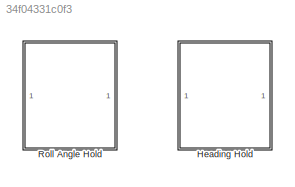
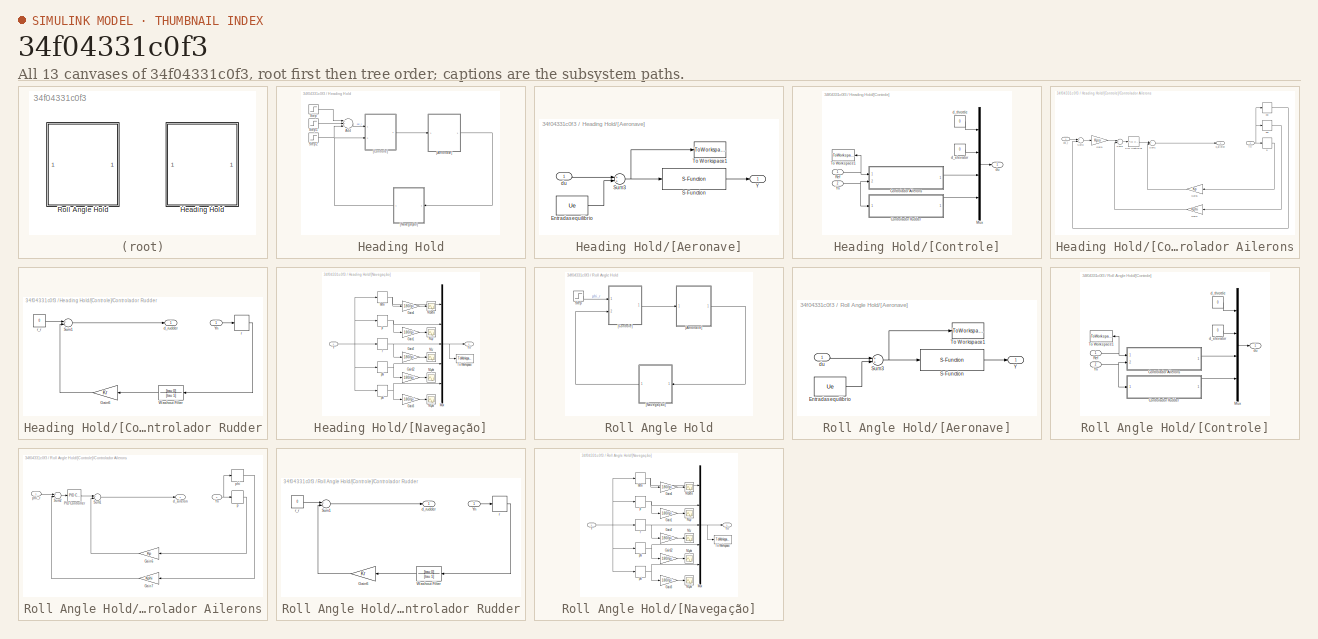
[diagram: thumbnail index - all 13 canvases of the model, root first then tree order]
MODEL slx_34f04331c0f3
KIND model
CONFIG AbsTol = auto
CONFIG FixedStep = 0.01
CONFIG MaxStep = auto
CONFIG MinStep = auto
CONFIG RelTol = 1e-3
CONFIG SampleTimeConstraint = Unconstrained
CONFIG Solver = ode4
CONFIG SolverMode = Auto
CONFIG SolverName = ode4
CONFIG StartTime = 0.0
CONFIG StopTime = 300
BLOCK [SubSystem] Heading Hold
  Ports = []
  RequestExecContextInheritance = off
  Variant = off
BLOCK [Sum] Heading Hold/Add
  InputSameDT = off
  Inputs = +++
  OutDataTypeStr = Inherit: Inherit via internal rule
  Ports = [3, 1]
  SaturateOnIntegerOverflow = off
BLOCK [Step] Heading Hold/Step
  After = degtorad(45)
  SampleTime = 0
  Time = 50
BLOCK [Step] Heading Hold/Step1
  After = degtorad(-90)
  SampleTime = 0
  Time = 150
BLOCK [Step] Heading Hold/Step2
  After = degtorad(45)
  SampleTime = 0
  Time = 250
BLOCK [SubSystem] Heading Hold/[Aeronave]
  Ports = [1, 1]
  RequestExecContextInheritance = off
  Variant = off
BLOCK [Constant] Heading Hold/[Aeronave]/Entradas equilibrio
  Value = Ue
BLOCK [S-Function] Heading Hold/[Aeronave]/S-Function
  EnableBusSupport = off
  FunctionName = sfunction_piper
  Parameters = par_gen,par_aero,par_prop, Xe
  Ports = [1, 1]
  SFunctionDeploymentMode = off
BLOCK [Sum] Heading Hold/[Aeronave]/Sum3
  InputSameDT = off
  OutDataTypeStr = Inherit: Inherit via internal rule
  Ports = [2, 1]
  SaturateOnIntegerOverflow = off
BLOCK [ToWorkspace] Heading Hold/[Aeronave]/To Workspace1
  MaxDataPoints = inf
  Ports = [1]
  SampleTime = -1
  SaveFormat = Timeseries
  VariableName = NLU
BLOCK [Outport] Heading Hold/[Aeronave]/Y
  IconDisplay = Port number
BLOCK [Inport] Heading Hold/[Aeronave]/du
  IconDisplay = Port number
BLOCK [SubSystem] Heading Hold/[Controle]
  Ports = [2, 1]
  RequestExecContextInheritance = off
  Variant = off
BLOCK [SubSystem] Heading Hold/[Controle]/Controlador Ailerons
  Ports = [2, 1]
  RequestExecContextInheritance = off
  Variant = off
BLOCK [Gain] Heading Hold/[Controle]/Controlador Ailerons/Gain1
  Gain = Kpsi
  OutDataTypeStr = Inherit: Inherit via internal rule
  ParamDataTypeStr = Inherit: Inherit via internal rule
  SaturateOnIntegerOverflow = off
BLOCK [Gain] Heading Hold/[Controle]/Controlador Ailerons/Gain6
  Gain = Kp
  OutDataTypeStr = Inherit: Inherit via internal rule
  ParamDataTypeStr = Inherit: Inherit via internal rule
  SaturateOnIntegerOverflow = off
BLOCK [Gain] Heading Hold/[Controle]/Controlador Ailerons/Gain7
  Gain = Kphi
  OutDataTypeStr = Inherit: Inherit via internal rule
  ParamDataTypeStr = Inherit: Inherit via internal rule
  SaturateOnIntegerOverflow = off
BLOCK [Reference] Heading Hold/[Controle]/Controlador Ailerons/PID Controller  REF=simulink/Continuous/PID Controller
  Ports = [1, 1]
  SourceBlock = simulink/Continuous/PID Controller
  SourceType = PID 1dof
BLOCK [Sum] Heading Hold/[Controle]/Controlador Ailerons/Sum1
  InputSameDT = off
  Inputs = +-
  OutDataTypeStr = Inherit: Inherit via internal rule
  Ports = [2, 1]
  SaturateOnIntegerOverflow = off
BLOCK [Sum] Heading Hold/[Controle]/Controlador Ailerons/Sum2
  InputSameDT = off
  Inputs = +-
  OutDataTypeStr = Inherit: Inherit via internal rule
  Ports = [2, 1]
  SaturateOnIntegerOverflow = off
BLOCK [Sum] Heading Hold/[Controle]/Controlador Ailerons/Sum3
  InputSameDT = off
  Inputs = +-
  OutDataTypeStr = Inherit: Inherit via internal rule
  Ports = [2, 1]
  SaturateOnIntegerOverflow = off
BLOCK [Inport] Heading Hold/[Controle]/Controlador Ailerons/Yn
  IconDisplay = Port number
  Port = 2
BLOCK [Outport] Heading Hold/[Controle]/Controlador Ailerons/d_aileron
  IconDisplay = Port number
BLOCK [Selector] Heading Hold/[Controle]/Controlador Ailerons/p
  IndexOptions = Index vector (dialog)
  Indices = [2]
  InputPortWidth = 5
  OutputSizes = 1
  Ports = [1, 1]
BLOCK [Selector] Heading Hold/[Controle]/Controlador Ailerons/phi
  IndexOptions = Index vector (dialog)
  Indices = [4]
  InputPortWidth = 5
  OutputSizes = 1
  Ports = [1, 1]
BLOCK [Selector] Heading Hold/[Controle]/Controlador Ailerons/psi
  IndexOptions = Index vector (dialog)
  Indices = [5]
  InputPortWidth = 5
  OutputSizes = 1
  Ports = [1, 1]
BLOCK [Inport] Heading Hold/[Controle]/Controlador Ailerons/psi_r
  IconDisplay = Port number
BLOCK [SubSystem] Heading Hold/[Controle]/Controlador Rudder
  Ports = [1, 1]
  RequestExecContextInheritance = off
  Variant = off
BLOCK [Gain] Heading Hold/[Controle]/Controlador Rudder/Gain6
  Gain = Kr
  OutDataTypeStr = Inherit: Inherit via internal rule
  ParamDataTypeStr = Inherit: Inherit via internal rule
  SaturateOnIntegerOverflow = off
BLOCK [Sum] Heading Hold/[Controle]/Controlador Rudder/Sum1
  InputSameDT = off
  Inputs = +-
  OutDataTypeStr = Inherit: Inherit via internal rule
  Ports = [2, 1]
  SaturateOnIntegerOverflow = off
BLOCK [TransferFcn] Heading Hold/[Controle]/Controlador Rudder/Washout Filter
  Denominator = [tau 1]
  Numerator = [tau 0]
BLOCK [Inport] Heading Hold/[Controle]/Controlador Rudder/Yn
  IconDisplay = Port number
BLOCK [Outport] Heading Hold/[Controle]/Controlador Rudder/d_rudder
  IconDisplay = Port number
BLOCK [Selector] Heading Hold/[Controle]/Controlador Rudder/r
  IndexOptions = Index vector (dialog)
  Indices = [3]
  InputPortWidth = 5
  OutputSizes = 1
  Ports = [1, 1]
BLOCK [Constant] Heading Hold/[Controle]/Controlador Rudder/r_r
  Value = 0
BLOCK [Mux] Heading Hold/[Controle]/Mux
  DisplayOption = bar
  Ports = [4, 1]
BLOCK [Inport] Heading Hold/[Controle]/Ref
  IconDisplay = Port number
BLOCK [ToWorkspace] Heading Hold/[Controle]/To Workspace1
  MaxDataPoints = inf
  Ports = [1]
  SampleTime = -1
  SaveFormat = Timeseries
  VariableName = NLstep
BLOCK [Inport] Heading Hold/[Controle]/Yn
  IconDisplay = Port number
  Port = 2
BLOCK [Constant] Heading Hold/[Controle]/d_elevator
  Value = 0
BLOCK [Constant] Heading Hold/[Controle]/d_throttle
  Value = 0
BLOCK [Outport] Heading Hold/[Controle]/du
  IconDisplay = Port number
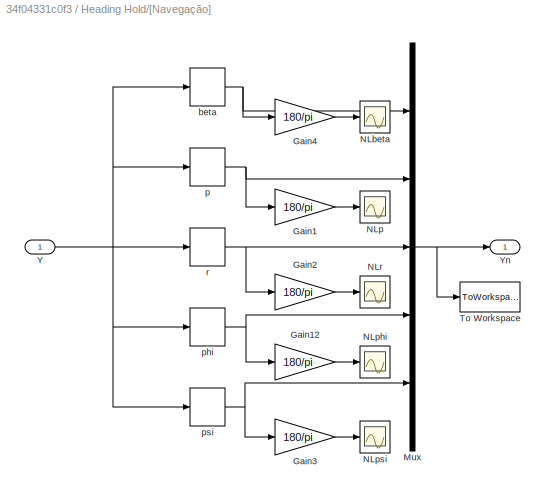
BLOCK [SubSystem] Heading Hold/[Navegação]
  Ports = [1, 1]
  RequestExecContextInheritance = off
  Variant = off
BLOCK [Gain] Heading Hold/[Navegação]/Gain1
  Gain = 180/pi
  OutDataTypeStr = Inherit: Inherit via internal rule
  ParamDataTypeStr = Inherit: Inherit via internal rule
  SaturateOnIntegerOverflow = off
BLOCK [Gain] Heading Hold/[Navegação]/Gain12
  Gain = 180/pi
  OutDataTypeStr = Inherit: Inherit via internal rule
  ParamDataTypeStr = Inherit: Inherit via internal rule
  SaturateOnIntegerOverflow = off
BLOCK [Gain] Heading Hold/[Navegação]/Gain2
  Gain = 180/pi
  OutDataTypeStr = Inherit: Inherit via internal rule
  ParamDataTypeStr = Inherit: Inherit via internal rule
  SaturateOnIntegerOverflow = off
BLOCK [Gain] Heading Hold/[Navegação]/Gain3
  Gain = 180/pi
  OutDataTypeStr = Inherit: Inherit via internal rule
  ParamDataTypeStr = Inherit: Inherit via internal rule
  SaturateOnIntegerOverflow = off
BLOCK [Gain] Heading Hold/[Navegação]/Gain4
  Gain = 180/pi
  OutDataTypeStr = Inherit: Inherit via internal rule
  ParamDataTypeStr = Inherit: Inherit via internal rule
  SaturateOnIntegerOverflow = off
BLOCK [Mux] Heading Hold/[Navegação]/Mux
  DisplayOption = bar
  Inputs = 5
  Ports = [5, 1]
BLOCK [Scope] Heading Hold/[Navegação]/NLbeta
  Ports = [1]
  ScopeSpecificationString = Simulink.scopes.TimeScopeBlockCfg('CurrentConfiguration', extmgr.ConfigurationSet(extmgr.Configuration('Core','General UI',true),extmgr.Configuration('Core','Source UI',true),extmgr.Configuration('Sources','WiredSimulink',true,'DataLoggingVariableName','ScopeData3','DataLoggingSaveFormat','StructureWithTime','DataLoggingLimitDataPoints',true,'DataLoggingDecimation','1','DataLoggingDecimateData',tr...<+1720ch>
BLOCK [Scope] Heading Hold/[Navegação]/NLp
  Ports = [1]
  ScopeSpecificationString = Simulink.scopes.TimeScopeBlockCfg('CurrentConfiguration', extmgr.ConfigurationSet(extmgr.Configuration('Core','General UI',true),extmgr.Configuration('Core','Source UI',true),extmgr.Configuration('Sources','WiredSimulink',true,'DataLoggingVariableName','ScopeData8','DataLoggingSaveFormat','StructureWithTime','DataLoggingLimitDataPoints',true,'DataLoggingDecimation','1','DataLoggingDecimateData',tr...<+1726ch>
BLOCK [Scope] Heading Hold/[Navegação]/NLphi
  Ports = [1]
  ScopeSpecificationString = Simulink.scopes.TimeScopeBlockCfg('CurrentConfiguration', extmgr.ConfigurationSet(extmgr.Configuration('Core','General UI',true),extmgr.Configuration('Core','Source UI',true),extmgr.Configuration('Sources','WiredSimulink',true,'DataLoggingVariableName','ScopeData7','DataLoggingSaveFormat','StructureWithTime','DataLoggingLimitDataPoints',true,'DataLoggingDecimation','1','DataLoggingDecimateData',tr...<+1754ch>
BLOCK [Scope] Heading Hold/[Navegação]/NLpsi
  Ports = [1]
  ScopeSpecificationString = Simulink.scopes.TimeScopeBlockCfg('CurrentConfiguration', extmgr.ConfigurationSet(extmgr.Configuration('Core','General UI',true),extmgr.Configuration('Core','Source UI',true),extmgr.Configuration('Sources','WiredSimulink',true,'DataLoggingVariableName','ScopeData5','DataLoggingSaveFormat','StructureWithTime','DataLoggingLimitDataPoints',true,'DataLoggingDecimation','1','DataLoggingDecimateData',tr...<+1726ch>
BLOCK [Scope] Heading Hold/[Navegação]/NLr
  Ports = [1]
  ScopeSpecificationString = Simulink.scopes.TimeScopeBlockCfg('CurrentConfiguration', extmgr.ConfigurationSet(extmgr.Configuration('Core','General UI',true),extmgr.Configuration('Core','Source UI',true),extmgr.Configuration('Sources','WiredSimulink',true,'DataLoggingVariableName','ScopeData9','DataLoggingSaveFormat','StructureWithTime','DataLoggingLimitDataPoints',true,'DataLoggingDecimation','1','DataLoggingDecimateData',tr...<+1724ch>
BLOCK [ToWorkspace] Heading Hold/[Navegação]/To Workspace
  MaxDataPoints = inf
  Ports = [1]
  SampleTime = -1
  SaveFormat = Timeseries
  VariableName = NLY
BLOCK [Inport] Heading Hold/[Navegação]/Y
  IconDisplay = Port number
BLOCK [Outport] Heading Hold/[Navegação]/Yn
  IconDisplay = Port number
BLOCK [Selector] Heading Hold/[Navegação]/beta
  IndexOptions = Index vector (dialog)
  Indices = [3]
  InputPortWidth = 12
  OutputSizes = 1
  Ports = [1, 1]
BLOCK [Selector] Heading Hold/[Navegação]/p
  IndexOptions = Index vector (dialog)
  Indices = [4]
  InputPortWidth = 12
  OutputSizes = 1
  Ports = [1, 1]
BLOCK [Selector] Heading Hold/[Navegação]/phi
  IndexOptions = Index vector (dialog)
  Indices = [7]
  InputPortWidth = 12
  OutputSizes = 1
  Ports = [1, 1]
BLOCK [Selector] Heading Hold/[Navegação]/psi
  IndexOptions = Index vector (dialog)
  Indices = [9]
  InputPortWidth = 12
  OutputSizes = 1
  Ports = [1, 1]
BLOCK [Selector] Heading Hold/[Navegação]/r
  IndexOptions = Index vector (dialog)
  Indices = [6]
  InputPortWidth = 12
  OutputSizes = 1
  Ports = [1, 1]
BLOCK [SubSystem] Roll Angle Hold
  Commented = on
  Ports = []
  RequestExecContextInheritance = off
  Variant = off
BLOCK [Step] Roll Angle Hold/Step
  After = degtorad(20)
  SampleTime = 0
  Time = 20
BLOCK [SubSystem] Roll Angle Hold/[Aeronave]
  Ports = [1, 1]
  RequestExecContextInheritance = off
  Variant = off
BLOCK [Constant] Roll Angle Hold/[Aeronave]/Entradas equilibrio
  Value = Ue
BLOCK [S-Function] Roll Angle Hold/[Aeronave]/S-Function
  EnableBusSupport = off
  FunctionName = sfunction_piper
  Parameters = par_gen,par_aero,par_prop, Xe
  Ports = [1, 1]
  SFunctionDeploymentMode = off
BLOCK [Sum] Roll Angle Hold/[Aeronave]/Sum3
  InputSameDT = off
  OutDataTypeStr = Inherit: Inherit via internal rule
  Ports = [2, 1]
  SaturateOnIntegerOverflow = off
BLOCK [ToWorkspace] Roll Angle Hold/[Aeronave]/To Workspace1
  MaxDataPoints = inf
  Ports = [1]
  SampleTime = -1
  SaveFormat = Timeseries
  VariableName = NLU
BLOCK [Outport] Roll Angle Hold/[Aeronave]/Y
  IconDisplay = Port number
BLOCK [Inport] Roll Angle Hold/[Aeronave]/du
  IconDisplay = Port number
BLOCK [SubSystem] Roll Angle Hold/[Controle]
  Ports = [2, 1]
  RequestExecContextInheritance = off
  Variant = off
BLOCK [SubSystem] Roll Angle Hold/[Controle]/Controlador Ailerons
  Ports = [2, 1]
  RequestExecContextInheritance = off
  Variant = off
BLOCK [Gain] Roll Angle Hold/[Controle]/Controlador Ailerons/Gain6
  Gain = Kp
  OutDataTypeStr = Inherit: Inherit via internal rule
  ParamDataTypeStr = Inherit: Inherit via internal rule
  SaturateOnIntegerOverflow = off
BLOCK [Gain] Roll Angle Hold/[Controle]/Controlador Ailerons/Gain7
  Gain = Kphi
  OutDataTypeStr = Inherit: Inherit via internal rule
  ParamDataTypeStr = Inherit: Inherit via internal rule
  SaturateOnIntegerOverflow = off
BLOCK [Reference] Roll Angle Hold/[Controle]/Controlador Ailerons/PID Controller  REF=simulink/Continuous/PID Controller
  Ports = [1, 1]
  SourceBlock = simulink/Continuous/PID Controller
  SourceType = PID 1dof
BLOCK [Sum] Roll Angle Hold/[Controle]/Controlador Ailerons/Sum1
  InputSameDT = off
  Inputs = +-
  OutDataTypeStr = Inherit: Inherit via internal rule
  Ports = [2, 1]
  SaturateOnIntegerOverflow = off
BLOCK [Sum] Roll Angle Hold/[Controle]/Controlador Ailerons/Sum2
  InputSameDT = off
  Inputs = +-
  OutDataTypeStr = Inherit: Inherit via internal rule
  Ports = [2, 1]
  SaturateOnIntegerOverflow = off
BLOCK [Inport] Roll Angle Hold/[Controle]/Controlador Ailerons/Yn
  IconDisplay = Port number
  Port = 2
BLOCK [Outport] Roll Angle Hold/[Controle]/Controlador Ailerons/d_aileron
  IconDisplay = Port number
BLOCK [Selector] Roll Angle Hold/[Controle]/Controlador Ailerons/p
  IndexOptions = Index vector (dialog)
  Indices = [2]
  InputPortWidth = 5
  OutputSizes = 1
  Ports = [1, 1]
BLOCK [Selector] Roll Angle Hold/[Controle]/Controlador Ailerons/phi
  IndexOptions = Index vector (dialog)
  Indices = [4]
  InputPortWidth = 5
  OutputSizes = 1
  Ports = [1, 1]
BLOCK [Inport] Roll Angle Hold/[Controle]/Controlador Ailerons/phi_r
  IconDisplay = Port number
BLOCK [SubSystem] Roll Angle Hold/[Controle]/Controlador Rudder
  Ports = [1, 1]
  RequestExecContextInheritance = off
  Variant = off
BLOCK [Gain] Roll Angle Hold/[Controle]/Controlador Rudder/Gain6
  Gain = Kr
  OutDataTypeStr = Inherit: Inherit via internal rule
  ParamDataTypeStr = Inherit: Inherit via internal rule
  SaturateOnIntegerOverflow = off
BLOCK [Sum] Roll Angle Hold/[Controle]/Controlador Rudder/Sum1
  InputSameDT = off
  Inputs = +-
  OutDataTypeStr = Inherit: Inherit via internal rule
  Ports = [2, 1]
  SaturateOnIntegerOverflow = off
BLOCK [TransferFcn] Roll Angle Hold/[Controle]/Controlador Rudder/Washout Filter
  Denominator = [tau 1]
  Numerator = [tau 0]
BLOCK [Inport] Roll Angle Hold/[Controle]/Controlador Rudder/Yn
  IconDisplay = Port number
BLOCK [Outport] Roll Angle Hold/[Controle]/Controlador Rudder/d_rudder
  IconDisplay = Port number
BLOCK [Selector] Roll Angle Hold/[Controle]/Controlador Rudder/r
  IndexOptions = Index vector (dialog)
  Indices = [3]
  InputPortWidth = 5
  OutputSizes = 1
  Ports = [1, 1]
BLOCK [Constant] Roll Angle Hold/[Controle]/Controlador Rudder/r_r
  Value = 0
BLOCK [Mux] Roll Angle Hold/[Controle]/Mux
  DisplayOption = bar
  Ports = [4, 1]
BLOCK [Inport] Roll Angle Hold/[Controle]/Ref
  IconDisplay = Port number
BLOCK [ToWorkspace] Roll Angle Hold/[Controle]/To Workspace1
  MaxDataPoints = inf
  Ports = [1]
  SampleTime = -1
  SaveFormat = Timeseries
  VariableName = NLstep
BLOCK [Inport] Roll Angle Hold/[Controle]/Yn
  IconDisplay = Port number
  Port = 2
BLOCK [Constant] Roll Angle Hold/[Controle]/d_elevator
  Value = 0
BLOCK [Constant] Roll Angle Hold/[Controle]/d_throttle
  Value = 0
BLOCK [Outport] Roll Angle Hold/[Controle]/du
  IconDisplay = Port number
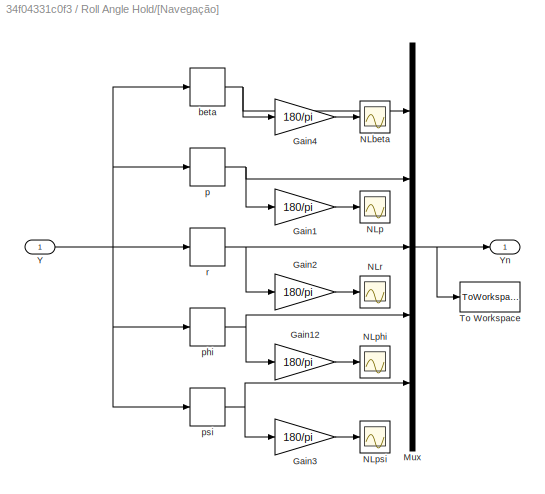
BLOCK [SubSystem] Roll Angle Hold/[Navegação]
  Ports = [1, 1]
  RequestExecContextInheritance = off
  Variant = off
BLOCK [Gain] Roll Angle Hold/[Navegação]/Gain1
  Gain = 180/pi
  OutDataTypeStr = Inherit: Inherit via internal rule
  ParamDataTypeStr = Inherit: Inherit via internal rule
  SaturateOnIntegerOverflow = off
BLOCK [Gain] Roll Angle Hold/[Navegação]/Gain12
  Gain = 180/pi
  OutDataTypeStr = Inherit: Inherit via internal rule
  ParamDataTypeStr = Inherit: Inherit via internal rule
  SaturateOnIntegerOverflow = off
BLOCK [Gain] Roll Angle Hold/[Navegação]/Gain2
  Gain = 180/pi
  OutDataTypeStr = Inherit: Inherit via internal rule
  ParamDataTypeStr = Inherit: Inherit via internal rule
  SaturateOnIntegerOverflow = off
BLOCK [Gain] Roll Angle Hold/[Navegação]/Gain3
  Gain = 180/pi
  OutDataTypeStr = Inherit: Inherit via internal rule
  ParamDataTypeStr = Inherit: Inherit via internal rule
  SaturateOnIntegerOverflow = off
BLOCK [Gain] Roll Angle Hold/[Navegação]/Gain4
  Gain = 180/pi
  OutDataTypeStr = Inherit: Inherit via internal rule
  ParamDataTypeStr = Inherit: Inherit via internal rule
  SaturateOnIntegerOverflow = off
BLOCK [Mux] Roll Angle Hold/[Navegação]/Mux
  DisplayOption = bar
  Inputs = 5
  Ports = [5, 1]
BLOCK [Scope] Roll Angle Hold/[Navegação]/NLbeta
  Ports = [1]
  ScopeSpecificationString = Simulink.scopes.TimeScopeBlockCfg('CurrentConfiguration', extmgr.ConfigurationSet(extmgr.Configuration('Core','General UI',true),extmgr.Configuration('Core','Source UI',true),extmgr.Configuration('Sources','WiredSimulink',true,'DataLoggingVariableName','ScopeData3','DataLoggingSaveFormat','StructureWithTime','DataLoggingLimitDataPoints',true,'DataLoggingDecimation','1','DataLoggingDecimateData',tr...<+1720ch>
BLOCK [Scope] Roll Angle Hold/[Navegação]/NLp
  Ports = [1]
  ScopeSpecificationString = Simulink.scopes.TimeScopeBlockCfg('CurrentConfiguration', extmgr.ConfigurationSet(extmgr.Configuration('Core','General UI',true),extmgr.Configuration('Core','Source UI',true),extmgr.Configuration('Sources','WiredSimulink',true,'DataLoggingVariableName','ScopeData8','DataLoggingSaveFormat','StructureWithTime','DataLoggingLimitDataPoints',true,'DataLoggingDecimation','1','DataLoggingDecimateData',tr...<+1726ch>
BLOCK [Scope] Roll Angle Hold/[Navegação]/NLphi
  Ports = [1]
  ScopeSpecificationString = Simulink.scopes.TimeScopeBlockCfg('CurrentConfiguration', extmgr.ConfigurationSet(extmgr.Configuration('Core','General UI',true),extmgr.Configuration('Core','Source UI',true),extmgr.Configuration('Sources','WiredSimulink',true,'DataLoggingVariableName','ScopeData7','DataLoggingSaveFormat','StructureWithTime','DataLoggingLimitDataPoints',true,'DataLoggingDecimation','1','DataLoggingDecimateData',tr...<+1754ch>
BLOCK [Scope] Roll Angle Hold/[Navegação]/NLpsi
  Ports = [1]
  ScopeSpecificationString = Simulink.scopes.TimeScopeBlockCfg('CurrentConfiguration', extmgr.ConfigurationSet(extmgr.Configuration('Core','General UI',true),extmgr.Configuration('Core','Source UI',true),extmgr.Configuration('Sources','WiredSimulink',true,'DataLoggingVariableName','ScopeData5','DataLoggingSaveFormat','StructureWithTime','DataLoggingLimitDataPoints',true,'DataLoggingDecimation','1','DataLoggingDecimateData',tr...<+1732ch>
BLOCK [Scope] Roll Angle Hold/[Navegação]/NLr
  Ports = [1]
  ScopeSpecificationString = Simulink.scopes.TimeScopeBlockCfg('CurrentConfiguration', extmgr.ConfigurationSet(extmgr.Configuration('Core','General UI',true),extmgr.Configuration('Core','Source UI',true),extmgr.Configuration('Sources','WiredSimulink',true,'DataLoggingVariableName','ScopeData9','DataLoggingSaveFormat','StructureWithTime','DataLoggingLimitDataPoints',true,'DataLoggingDecimation','1','DataLoggingDecimateData',tr...<+1724ch>
BLOCK [ToWorkspace] Roll Angle Hold/[Navegação]/To Workspace
  MaxDataPoints = inf
  Ports = [1]
  SampleTime = -1
  SaveFormat = Timeseries
  VariableName = NLY
BLOCK [Inport] Roll Angle Hold/[Navegação]/Y
  IconDisplay = Port number
BLOCK [Outport] Roll Angle Hold/[Navegação]/Yn
  IconDisplay = Port number
BLOCK [Selector] Roll Angle Hold/[Navegação]/beta
  IndexOptions = Index vector (dialog)
  Indices = [3]
  InputPortWidth = 12
  OutputSizes = 1
  Ports = [1, 1]
BLOCK [Selector] Roll Angle Hold/[Navegação]/p
  IndexOptions = Index vector (dialog)
  Indices = [4]
  InputPortWidth = 12
  OutputSizes = 1
  Ports = [1, 1]
BLOCK [Selector] Roll Angle Hold/[Navegação]/phi
  IndexOptions = Index vector (dialog)
  Indices = [7]
  InputPortWidth = 12
  OutputSizes = 1
  Ports = [1, 1]
BLOCK [Selector] Roll Angle Hold/[Navegação]/psi
  IndexOptions = Index vector (dialog)
  Indices = [9]
  InputPortWidth = 12
  OutputSizes = 1
  Ports = [1, 1]
BLOCK [Selector] Roll Angle Hold/[Navegação]/r
  IndexOptions = Index vector (dialog)
  Indices = [6]
  InputPortWidth = 12
  OutputSizes = 1
  Ports = [1, 1]
LINE Heading Hold/Add:1 -> Heading Hold/[Controle]:1
LINE Heading Hold/Step1:1 -> Heading Hold/Add:2
LINE Heading Hold/Step2:1 -> Heading Hold/Add:3
LINE Heading Hold/Step:1 -> Heading Hold/Add:1
LINE Heading Hold/[Aeronave]/Entradas equilibrio:1 -> Heading Hold/[Aeronave]/Sum3:2
LINE Heading Hold/[Aeronave]/S-Function:1 -> Heading Hold/[Aeronave]/Y:1
NET Heading Hold/[Aeronave]/Sum3:1 -> Heading Hold/[Aeronave]/S-Function:1, Heading Hold/[Aeronave]/To Workspace1:1
LINE Heading Hold/[Aeronave]/du:1 -> Heading Hold/[Aeronave]/Sum3:1
LINE Heading Hold/[Aeronave]:1 -> Heading Hold/[Navegação]:1
LINE Heading Hold/[Controle]/Controlador Ailerons/Gain1:1 -> Heading Hold/[Controle]/Controlador Ailerons/Sum2:1
LINE Heading Hold/[Controle]/Controlador Ailerons/Gain6:1 -> Heading Hold/[Controle]/Controlador Ailerons/Sum1:2
LINE Heading Hold/[Controle]/Controlador Ailerons/Gain7:1 -> Heading Hold/[Controle]/Controlador Ailerons/Sum2:2
LINE Heading Hold/[Controle]/Controlador Ailerons/PID Controller:1 -> Heading Hold/[Controle]/Controlador Ailerons/Sum1:1
LINE Heading Hold/[Controle]/Controlador Ailerons/Sum1:1 -> Heading Hold/[Controle]/Controlador Ailerons/d_aileron:1
LINE Heading Hold/[Controle]/Controlador Ailerons/Sum2:1 -> Heading Hold/[Controle]/Controlador Ailerons/PID Controller:1
LINE Heading Hold/[Controle]/Controlador Ailerons/Sum3:1 -> Heading Hold/[Controle]/Controlador Ailerons/Gain1:1
NET Heading Hold/[Controle]/Controlador Ailerons/Yn:1 -> Heading Hold/[Controle]/Controlador Ailerons/p:1, Heading Hold/[Controle]/Controlador Ailerons/phi:1, Heading Hold/[Controle]/Controlador Ailerons/psi:1
LINE Heading Hold/[Controle]/Controlador Ailerons/p:1 -> Heading Hold/[Controle]/Controlador Ailerons/Gain6:1
LINE Heading Hold/[Controle]/Controlador Ailerons/phi:1 -> Heading Hold/[Controle]/Controlador Ailerons/Gain7:1
LINE Heading Hold/[Controle]/Controlador Ailerons/psi:1 -> Heading Hold/[Controle]/Controlador Ailerons/Sum3:2
LINE Heading Hold/[Controle]/Controlador Ailerons/psi_r:1 -> Heading Hold/[Controle]/Controlador Ailerons/Sum3:1
LINE Heading Hold/[Controle]/Controlador Ailerons:1 -> Heading Hold/[Controle]/Mux:3
LINE Heading Hold/[Controle]/Controlador Rudder/Gain6:1 -> Heading Hold/[Controle]/Controlador Rudder/Sum1:2
LINE Heading Hold/[Controle]/Controlador Rudder/Sum1:1 -> Heading Hold/[Controle]/Controlador Rudder/d_rudder:1
LINE Heading Hold/[Controle]/Controlador Rudder/Washout Filter:1 -> Heading Hold/[Controle]/Controlador Rudder/Gain6:1
LINE Heading Hold/[Controle]/Controlador Rudder/Yn:1 -> Heading Hold/[Controle]/Controlador Rudder/r:1
LINE Heading Hold/[Controle]/Controlador Rudder/r:1 -> Heading Hold/[Controle]/Controlador Rudder/Washout Filter:1
LINE Heading Hold/[Controle]/Controlador Rudder/r_r:1 -> Heading Hold/[Controle]/Controlador Rudder/Sum1:1
LINE Heading Hold/[Controle]/Controlador Rudder:1 -> Heading Hold/[Controle]/Mux:4
LINE Heading Hold/[Controle]/Mux:1 -> Heading Hold/[Controle]/du:1
NET Heading Hold/[Controle]/Ref:1 -> Heading Hold/[Controle]/Controlador Ailerons:1, Heading Hold/[Controle]/To Workspace1:1
NET Heading Hold/[Controle]/Yn:1 -> Heading Hold/[Controle]/Controlador Ailerons:2, Heading Hold/[Controle]/Controlador Rudder:1
LINE Heading Hold/[Controle]/d_elevator:1 -> Heading Hold/[Controle]/Mux:2
LINE Heading Hold/[Controle]/d_throttle:1 -> Heading Hold/[Controle]/Mux:1
LINE Heading Hold/[Controle]:1 -> Heading Hold/[Aeronave]:1
LINE Heading Hold/[Navegação]/Gain12:1 -> Heading Hold/[Navegação]/NLphi:1
LINE Heading Hold/[Navegação]/Gain1:1 -> Heading Hold/[Navegação]/NLp:1
LINE Heading Hold/[Navegação]/Gain2:1 -> Heading Hold/[Navegação]/NLr:1
LINE Heading Hold/[Navegação]/Gain3:1 -> Heading Hold/[Navegação]/NLpsi:1
LINE Heading Hold/[Navegação]/Gain4:1 -> Heading Hold/[Navegação]/NLbeta:1
NET Heading Hold/[Navegação]/Mux:1 -> Heading Hold/[Navegação]/To Workspace:1, Heading Hold/[Navegação]/Yn:1
NET Heading Hold/[Navegação]/Y:1 -> Heading Hold/[Navegação]/beta:1, Heading Hold/[Navegação]/p:1, Heading Hold/[Navegação]/phi:1, Heading Hold/[Navegação]/psi:1, Heading Hold/[Navegação]/r:1
NET Heading Hold/[Navegação]/beta:1 -> Heading Hold/[Navegação]/Gain4:1, Heading Hold/[Navegação]/Mux:1
NET Heading Hold/[Navegação]/p:1 -> Heading Hold/[Navegação]/Gain1:1, Heading Hold/[Navegação]/Mux:2
NET Heading Hold/[Navegação]/phi:1 -> Heading Hold/[Navegação]/Gain12:1, Heading Hold/[Navegação]/Mux:4
NET Heading Hold/[Navegação]/psi:1 -> Heading Hold/[Navegação]/Gain3:1, Heading Hold/[Navegação]/Mux:5
NET Heading Hold/[Navegação]/r:1 -> Heading Hold/[Navegação]/Gain2:1, Heading Hold/[Navegação]/Mux:3
LINE Heading Hold/[Navegação]:1 -> Heading Hold/[Controle]:2
LINE Roll Angle Hold/Step:1 -> Roll Angle Hold/[Controle]:1
LINE Roll Angle Hold/[Aeronave]/Entradas equilibrio:1 -> Roll Angle Hold/[Aeronave]/Sum3:2
LINE Roll Angle Hold/[Aeronave]/S-Function:1 -> Roll Angle Hold/[Aeronave]/Y:1
NET Roll Angle Hold/[Aeronave]/Sum3:1 -> Roll Angle Hold/[Aeronave]/S-Function:1, Roll Angle Hold/[Aeronave]/To Workspace1:1
LINE Roll Angle Hold/[Aeronave]/du:1 -> Roll Angle Hold/[Aeronave]/Sum3:1
LINE Roll Angle Hold/[Aeronave]:1 -> Roll Angle Hold/[Navegação]:1
LINE Roll Angle Hold/[Controle]/Controlador Ailerons/Gain6:1 -> Roll Angle Hold/[Controle]/Controlador Ailerons/Sum1:2
LINE Roll Angle Hold/[Controle]/Controlador Ailerons/Gain7:1 -> Roll Angle Hold/[Controle]/Controlador Ailerons/Sum2:2
LINE Roll Angle Hold/[Controle]/Controlador Ailerons/PID Controller:1 -> Roll Angle Hold/[Controle]/Controlador Ailerons/Sum1:1
LINE Roll Angle Hold/[Controle]/Controlador Ailerons/Sum1:1 -> Roll Angle Hold/[Controle]/Controlador Ailerons/d_aileron:1
LINE Roll Angle Hold/[Controle]/Controlador Ailerons/Sum2:1 -> Roll Angle Hold/[Controle]/Controlador Ailerons/PID Controller:1
NET Roll Angle Hold/[Controle]/Controlador Ailerons/Yn:1 -> Roll Angle Hold/[Controle]/Controlador Ailerons/p:1, Roll Angle Hold/[Controle]/Controlador Ailerons/phi:1
LINE Roll Angle Hold/[Controle]/Controlador Ailerons/p:1 -> Roll Angle Hold/[Controle]/Controlador Ailerons/Gain6:1
LINE Roll Angle Hold/[Controle]/Controlador Ailerons/phi:1 -> Roll Angle Hold/[Controle]/Controlador Ailerons/Gain7:1
LINE Roll Angle Hold/[Controle]/Controlador Ailerons/phi_r:1 -> Roll Angle Hold/[Controle]/Controlador Ailerons/Sum2:1
LINE Roll Angle Hold/[Controle]/Controlador Ailerons:1 -> Roll Angle Hold/[Controle]/Mux:3
LINE Roll Angle Hold/[Controle]/Controlador Rudder/Gain6:1 -> Roll Angle Hold/[Controle]/Controlador Rudder/Sum1:2
LINE Roll Angle Hold/[Controle]/Controlador Rudder/Sum1:1 -> Roll Angle Hold/[Controle]/Controlador Rudder/d_rudder:1
LINE Roll Angle Hold/[Controle]/Controlador Rudder/Washout Filter:1 -> Roll Angle Hold/[Controle]/Controlador Rudder/Gain6:1
LINE Roll Angle Hold/[Controle]/Controlador Rudder/Yn:1 -> Roll Angle Hold/[Controle]/Controlador Rudder/r:1
LINE Roll Angle Hold/[Controle]/Controlador Rudder/r:1 -> Roll Angle Hold/[Controle]/Controlador Rudder/Washout Filter:1
LINE Roll Angle Hold/[Controle]/Controlador Rudder/r_r:1 -> Roll Angle Hold/[Controle]/Controlador Rudder/Sum1:1
LINE Roll Angle Hold/[Controle]/Controlador Rudder:1 -> Roll Angle Hold/[Controle]/Mux:4
LINE Roll Angle Hold/[Controle]/Mux:1 -> Roll Angle Hold/[Controle]/du:1
NET Roll Angle Hold/[Controle]/Ref:1 -> Roll Angle Hold/[Controle]/Controlador Ailerons:1, Roll Angle Hold/[Controle]/To Workspace1:1
NET Roll Angle Hold/[Controle]/Yn:1 -> Roll Angle Hold/[Controle]/Controlador Ailerons:2, Roll Angle Hold/[Controle]/Controlador Rudder:1
LINE Roll Angle Hold/[Controle]/d_elevator:1 -> Roll Angle Hold/[Controle]/Mux:2
LINE Roll Angle Hold/[Controle]/d_throttle:1 -> Roll Angle Hold/[Controle]/Mux:1
LINE Roll Angle Hold/[Controle]:1 -> Roll Angle Hold/[Aeronave]:1
LINE Roll Angle Hold/[Navegação]/Gain12:1 -> Roll Angle Hold/[Navegação]/NLphi:1
LINE Roll Angle Hold/[Navegação]/Gain1:1 -> Roll Angle Hold/[Navegação]/NLp:1
LINE Roll Angle Hold/[Navegação]/Gain2:1 -> Roll Angle Hold/[Navegação]/NLr:1
LINE Roll Angle Hold/[Navegação]/Gain3:1 -> Roll Angle Hold/[Navegação]/NLpsi:1
LINE Roll Angle Hold/[Navegação]/Gain4:1 -> Roll Angle Hold/[Navegação]/NLbeta:1
NET Roll Angle Hold/[Navegação]/Mux:1 -> Roll Angle Hold/[Navegação]/To Workspace:1, Roll Angle Hold/[Navegação]/Yn:1
NET Roll Angle Hold/[Navegação]/Y:1 -> Roll Angle Hold/[Navegação]/beta:1, Roll Angle Hold/[Navegação]/p:1, Roll Angle Hold/[Navegação]/phi:1, Roll Angle Hold/[Navegação]/psi:1, Roll Angle Hold/[Navegação]/r:1
NET Roll Angle Hold/[Navegação]/beta:1 -> Roll Angle Hold/[Navegação]/Gain4:1, Roll Angle Hold/[Navegação]/Mux:1
NET Roll Angle Hold/[Navegação]/p:1 -> Roll Angle Hold/[Navegação]/Gain1:1, Roll Angle Hold/[Navegação]/Mux:2
NET Roll Angle Hold/[Navegação]/phi:1 -> Roll Angle Hold/[Navegação]/Gain12:1, Roll Angle Hold/[Navegação]/Mux:4
NET Roll Angle Hold/[Navegação]/psi:1 -> Roll Angle Hold/[Navegação]/Gain3:1, Roll Angle Hold/[Navegação]/Mux:5
NET Roll Angle Hold/[Navegação]/r:1 -> Roll Angle Hold/[Navegação]/Gain2:1, Roll Angle Hold/[Navegação]/Mux:3
LINE Roll Angle Hold/[Navegação]:1 -> Roll Angle Hold/[Controle]:2
note: NET lines group one-source signal fan-out (src -> all destinations, sorted); 1:1 wires keep LINE
